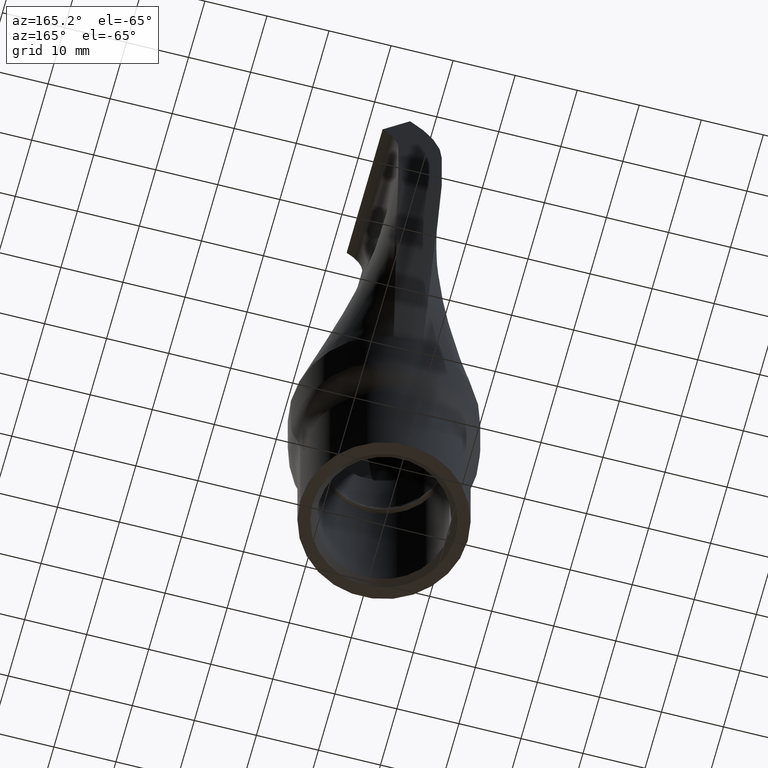
[diagram: clean part render]
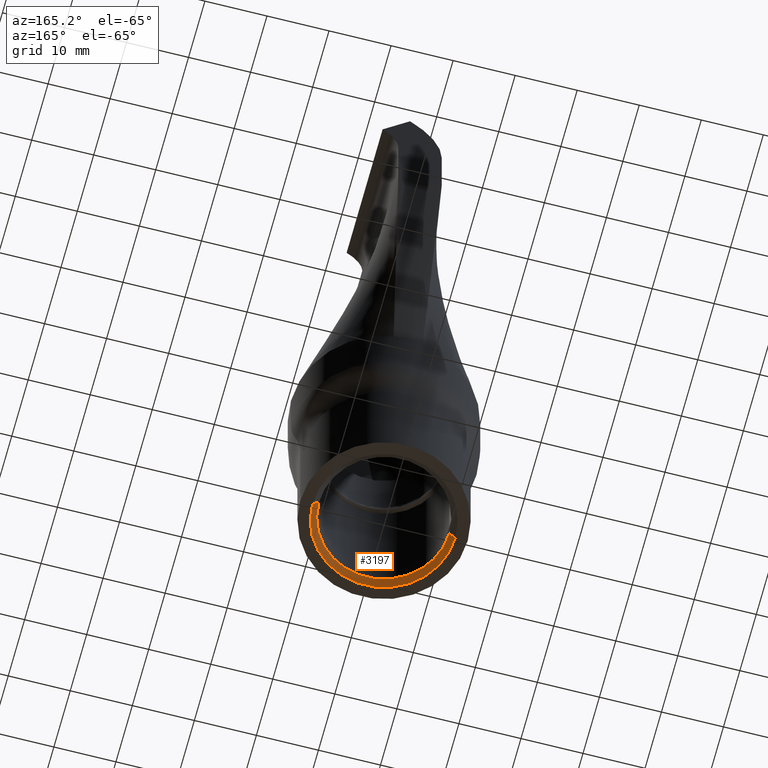
[diagram: same view with one face highlighted and labeled with its STEP entity id]
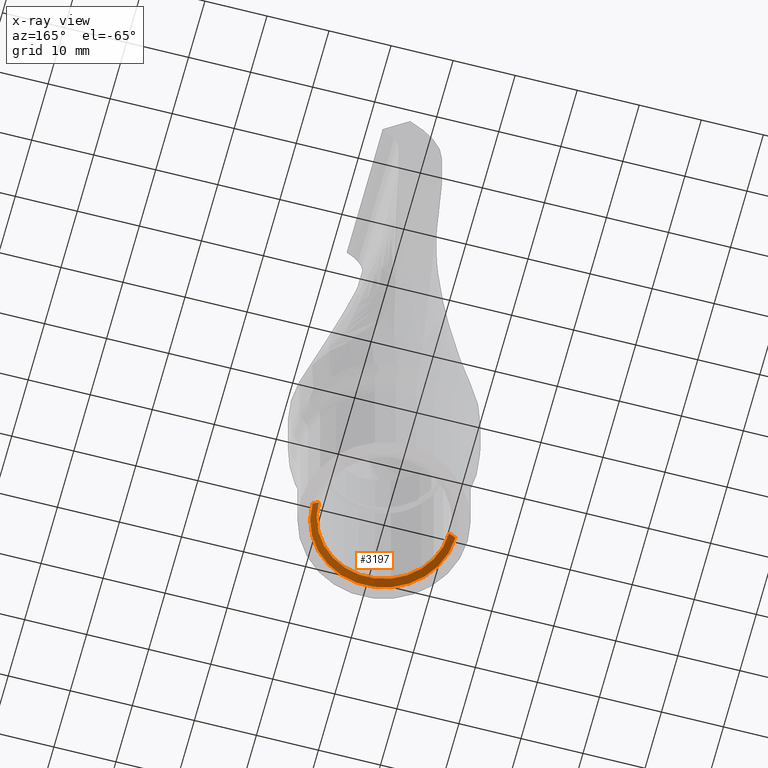
[diagram: x-ray of the same camera — body ghosted, the highlighted face saturated]
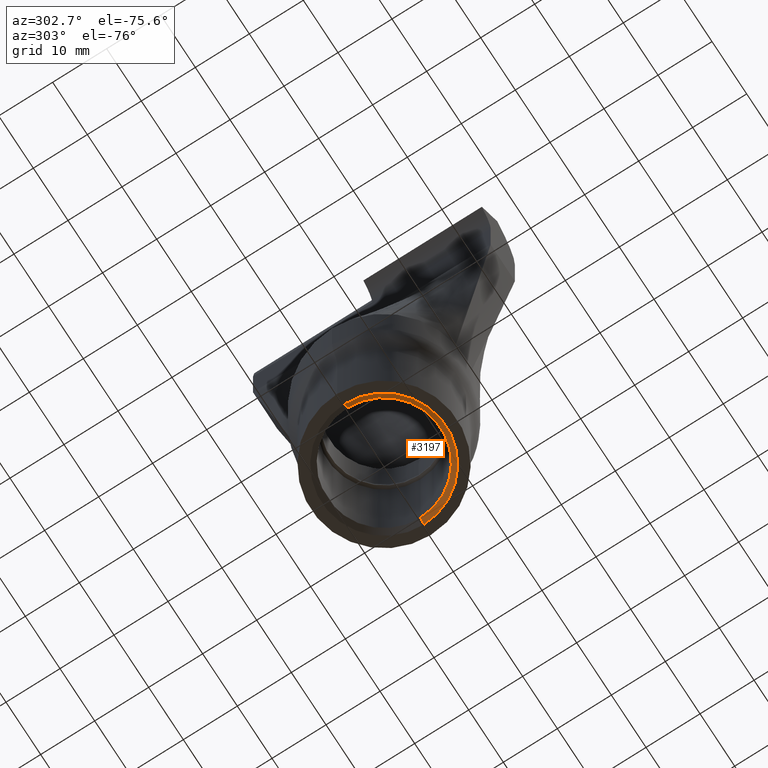
[diagram: same view with one face highlighted and labeled with its STEP entity id]
A machine part, auxiliary view. The second image highlights one B-rep face of the part: STEP entity #3197.
The next image is the same camera in x-ray: the body ghosted, the highlighted face saturated — about 0% of this face is hidden behind the body in this view.
A second angle (auxiliary view) of the same face is appended — the face is thin or edge-on in the first view.
In plain terms, the highlighted conical surface has half-angle 45 deg.
Its self-contained STEP definition (entity closure, byte-faithful):
#211 = CARTESIAN_POINT ( 'NONE',  ( -10.49999999999999500, 0.0000000000000000000, 1.000000000000023500 ) ) ;
#606 = DIRECTION ( 'NONE',  ( 1.000000000000000000, 0.0000000000000000000, 0.0000000000000000000 ) ) ;
#650 = CARTESIAN_POINT ( 'NONE',  ( 0.0000000000000000000, 0.0000000000000000000, 1.000000000000023500 ) ) ;
#893 = VECTOR ( 'NONE', #4185, 1000.000000000000000 ) ;
#914 = CARTESIAN_POINT ( 'NONE',  ( 10.49999999999999500, 1.285879139104720200E-015, 1.000000000000023500 ) ) ;
#1085 = AXIS2_PLACEMENT_3D ( 'NONE', #14122, #12688, #606 ) ;
#2192 = EDGE_CURVE ( 'NONE', #5302, #11560, #3003, .T. ) ;
#2864 = AXIS2_PLACEMENT_3D ( 'NONE', #5863, #8115, #10590 ) ;
#3003 = LINE ( 'NONE', #6659, #893 ) ;
#3197 = ADVANCED_FACE ( 'NONE', ( #8806 ), #3678, .F. ) ;
#3649 = VECTOR ( 'NONE', #3941, 1000.000000000000000 ) ;
#3678 = CONICAL_SURFACE ( 'NONE', #7991, 10.49999999999999500, 0.7853981633974439500 ) ;
#3854 = CIRCLE ( 'NONE', #1085, 11.50000000000001100 ) ;
#3941 = DIRECTION ( 'NONE',  ( 0.7071067811865444600, 8.659560562354895900E-017, -0.7071067811865505700 ) ) ;
#3994 = CARTESIAN_POINT ( 'NONE',  ( 10.49999999999999500, 1.285879139104720200E-015, 1.000000000000023500 ) ) ;
#4076 = EDGE_CURVE ( 'NONE', #11560, #11662, #3854, .T. ) ;
#4185 = DIRECTION ( 'NONE',  ( -0.7071067811865444600, 0.0000000000000000000, -0.7071067811865505700 ) ) ;
#4232 = EDGE_LOOP ( 'NONE', ( #14670, #5454, #13102, #15632 ) ) ;
#5140 = CARTESIAN_POINT ( 'NONE',  ( 11.50000000000001100, 1.408343819019457600E-015, 0.0000000000000000000 ) ) ;
#5302 = VERTEX_POINT ( 'NONE', #211 ) ;
#5454 = ORIENTED_EDGE ( 'NONE', *, *, #5683, .T. ) ;
#5672 = DIRECTION ( 'NONE',  ( 0.0000000000000000000, 0.0000000000000000000, -1.000000000000000000 ) ) ;
#5683 = EDGE_CURVE ( 'NONE', #8021, #11662, #8592, .T. ) ;
#5863 = CARTESIAN_POINT ( 'NONE',  ( 0.0000000000000000000, 0.0000000000000000000, 1.000000000000023500 ) ) ;
#6659 = CARTESIAN_POINT ( 'NONE',  ( -10.49999999999999500, 0.0000000000000000000, 1.000000000000023500 ) ) ;
#7991 = AXIS2_PLACEMENT_3D ( 'NONE', #650, #5672, #14165 ) ;
#8021 = VERTEX_POINT ( 'NONE', #914 ) ;
#8115 = DIRECTION ( 'NONE',  ( 0.0000000000000000000, 0.0000000000000000000, -1.000000000000000000 ) ) ;
#8592 = LINE ( 'NONE', #3994, #3649 ) ;
#8739 = EDGE_CURVE ( 'NONE', #8021, #5302, #13821, .T. ) ;
#8806 = FACE_OUTER_BOUND ( 'NONE', #4232, .T. ) ;
#10087 = CARTESIAN_POINT ( 'NONE',  ( -11.50000000000001100, 0.0000000000000000000, 0.0000000000000000000 ) ) ;
#10590 = DIRECTION ( 'NONE',  ( 1.000000000000000000, 0.0000000000000000000, 0.0000000000000000000 ) ) ;
#11560 = VERTEX_POINT ( 'NONE', #10087 ) ;
#11662 = VERTEX_POINT ( 'NONE', #5140 ) ;
#12688 = DIRECTION ( 'NONE',  ( 0.0000000000000000000, 0.0000000000000000000, 1.000000000000000000 ) ) ;
#13102 = ORIENTED_EDGE ( 'NONE', *, *, #4076, .F. ) ;
#13821 = CIRCLE ( 'NONE', #2864, 10.49999999999999500 ) ;
#14122 = CARTESIAN_POINT ( 'NONE',  ( 0.0000000000000000000, 0.0000000000000000000, 0.0000000000000000000 ) ) ;
#14165 = DIRECTION ( 'NONE',  ( -1.000000000000000000, 0.0000000000000000000, 0.0000000000000000000 ) ) ;
#14670 = ORIENTED_EDGE ( 'NONE', *, *, #8739, .F. ) ;
#15632 = ORIENTED_EDGE ( 'NONE', *, *, #2192, .F. ) ;